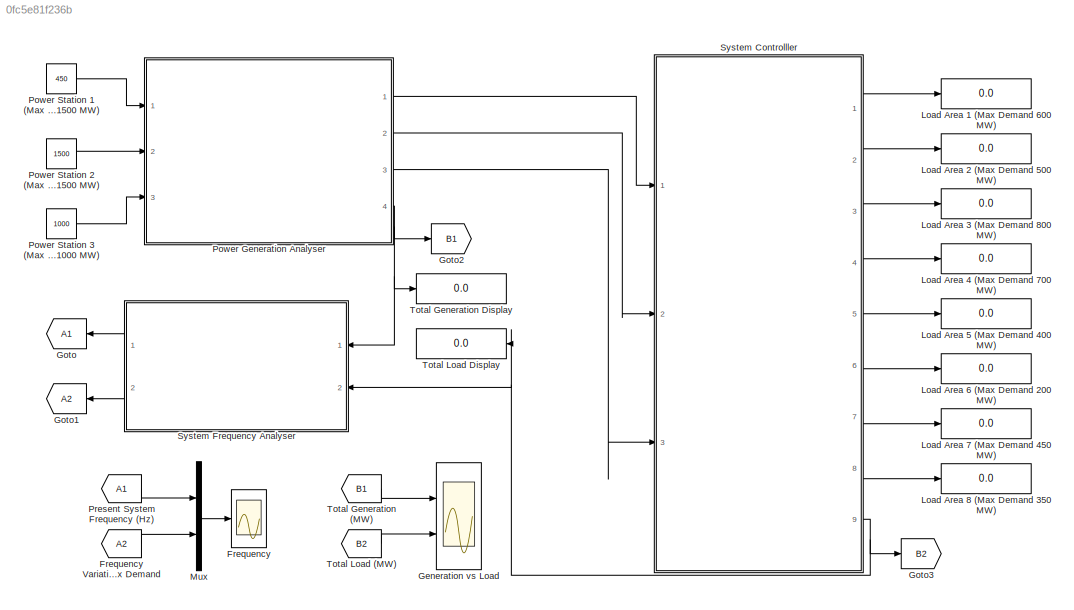
MODEL slx_0fc5e81f236b
KIND model
BLOCK [Scope] Frequency
  DataFormat = StructureWithTime
  Floating = off
  LegendLocations = 0.79306     0.86167     0.18082    0.052326
  NumInputPorts = 1
  Ports = [1]
  SampleTime = 0
  ShowLegends = on
  TickLabels = on
BLOCK [From] Frequency Variation w.r.t Max Demand
  GotoTag = A2
BLOCK [Scope] Generation vs Load
  DataFormat = StructureWithTime
  Floating = off
  LegendLocations = 0.85639     0.91642     0.12152    0.029554\n0.87689     0.45131     0.10102    0.029554
  NumInputPorts = 2
  Ports = [2]
  SampleTime = 0
  SaveName = ScopeData1
  ShowLegends = on
  YMax = 5~5
  YMin = -5~-5
BLOCK [Goto] Goto
  GotoTag = A1
BLOCK [Goto] Goto1
  GotoTag = A2
BLOCK [Goto] Goto2
  GotoTag = B1
BLOCK [Goto] Goto3
  GotoTag = B2
BLOCK [Display] Load Area 1 (Max Demand 600 MW)
  Decimation = 1
  Lockdown = off
  Ports = [1]
BLOCK [Display] Load Area 2 (Max Demand 500 MW)
  Decimation = 1
  Lockdown = off
  Ports = [1]
BLOCK [Display] Load Area 3 (Max Demand 800 MW)
  Decimation = 1
  Lockdown = off
  Ports = [1]
BLOCK [Display] Load Area 4 (Max Demand 700 MW)
  Decimation = 1
  Lockdown = off
  Ports = [1]
BLOCK [Display] Load Area 5 (Max Demand 400 MW)
  Decimation = 1
  Lockdown = off
  Ports = [1]
BLOCK [Display] Load Area 6 (Max Demand 200 MW)
  Decimation = 1
  Lockdown = off
  Ports = [1]
BLOCK [Display] Load Area 7 (Max Demand 450 MW)
  Decimation = 1
  Lockdown = off
  Ports = [1]
BLOCK [Display] Load Area 8 (Max Demand 350 MW)
  Decimation = 1
  Lockdown = off
  Ports = [1]
BLOCK [Mux] Mux
  DisplayOption = bar
  Inputs = 2
  Ports = [2, 1]
BLOCK [ModelReference] Power Generation Analyser
  CopyOfModelName = P_G_A.slx
  DefaultDataLogging = on
  ModelNameDialog = P_G_A.slx
  ModelReferenceVersion = 1.15
  Ports = [3, 4]
BLOCK [Constant] Power Station 1 (Max Generation Capacity 1500 MW)
  Value = 450
BLOCK [Constant] Power Station 2 (Max Generation Capacity 1500 MW)
  Value = 1500
BLOCK [Constant] Power Station 3 (Max Generation Capacity 1000 MW)
  Value = 1000
BLOCK [From] Present System Frequency (Hz)
  GotoTag = A1
BLOCK [ModelReference] System Controlller
  CopyOfModelName = S_C.slx
  DefaultDataLogging = on
  ModelNameDialog = S_C.slx
  ModelReferenceVersion = 1.12
  Ports = [3, 9]
BLOCK [ModelReference] System Frequency Analyser
  CopyOfModelName = F_A.slx
  DefaultDataLogging = on
  ModelNameDialog = F_A.slx
  ModelReferenceVersion = 1.5
  Ports = [2, 2]
BLOCK [From] Total Generation (MW)
  GotoTag = B1
BLOCK [Display] Total Generation Display
  Decimation = 1
  Lockdown = off
  Ports = [1]
BLOCK [From] Total Load (MW)
  GotoTag = B2
BLOCK [Display] Total Load Display
  Decimation = 1
  Lockdown = off
  Ports = [1]
LINE Frequency Variation w.r.t Max Demand:1 -> Mux:2
LINE Mux:1 -> Frequency:1
LINE Power Generation Analyser:1 -> System Controlller:1
LINE Power Generation Analyser:2 -> System Controlller:2
LINE Power Generation Analyser:3 -> System Controlller:3
NET Power Generation Analyser:4 -> Goto2:1, System Frequency Analyser:1, Total Generation Display:1
LINE Power Station 1 (Max Generation Capacity 1500 MW):1 -> Power Generation Analyser:1
LINE Power Station 2 (Max Generation Capacity 1500 MW):1 -> Power Generation Analyser:2
LINE Power Station 3 (Max Generation Capacity 1000 MW):1 -> Power Generation Analyser:3
LINE Present System Frequency (Hz):1 -> Mux:1
LINE System Controlller:1 -> Load Area 1 (Max Demand 600 MW):1
LINE System Controlller:2 -> Load Area 2 (Max Demand 500 MW):1
LINE System Controlller:3 -> Load Area 3 (Max Demand 800 MW):1
LINE System Controlller:4 -> Load Area 4 (Max Demand 700 MW):1
LINE System Controlller:5 -> Load Area 5 (Max Demand 400 MW):1
LINE System Controlller:6 -> Load Area 6 (Max Demand 200 MW):1
LINE System Controlller:7 -> Load Area 7 (Max Demand 450 MW):1
LINE System Controlller:8 -> Load Area 8 (Max Demand 350 MW):1
NET System Controlller:9 -> Goto3:1, System Frequency Analyser:2, Total Load Display:1
LINE System Frequency Analyser:1 -> Goto:1
LINE System Frequency Analyser:2 -> Goto1:1
LINE Total Generation (MW):1 -> Generation vs Load:1
LINE Total Load (MW):1 -> Generation vs Load:2
note: NET lines group one-source signal fan-out (src -> all destinations, sorted); 1:1 wires keep LINE
